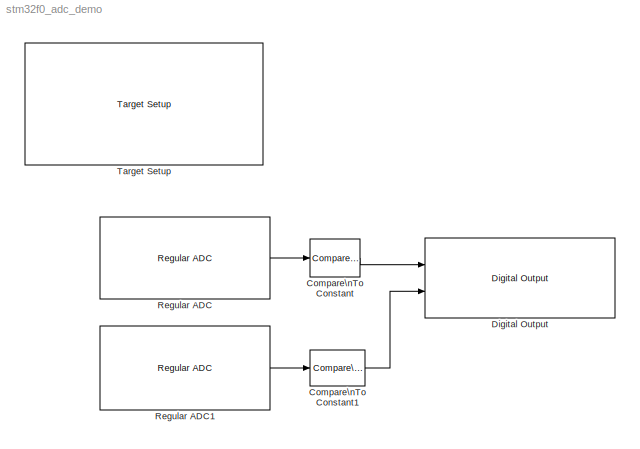
MODEL stm32f0_adc_demo
KIND model
CONFIG PreLoadFcn = waijung.modelPreload; % Required for working with Waijung Blockset. Do not remove.
BLOCK [Reference] Compare\nTo Constant  REF=simulink/Logic and Bit\nOperations/Compare\nTo Constant
  FunctionWithSeparateData = off
  LogicOutDataTypeMode = uint8
  Ports = [1, 1]
  RTWMemSecDataConstants = Inherit from model
  RTWMemSecDataInternal = Inherit from model
  RTWMemSecDataParameters = Inherit from model
  RTWMemSecFuncExecute = Inherit from model
  RTWMemSecFuncInitTerm = Inherit from model
  ShowPortLabels = FromPortIcon
  SourceBlock = simulink/Logic and Bit\nOperations/Compare\nTo Constant
  SourceType = Compare To Constant
  SystemSampleTime = -1
  ZeroCross = off
  const = 2048
  relop = >=
BLOCK [Reference] Compare\nTo Constant1  REF=simulink/Logic and Bit\nOperations/Compare\nTo Constant
  FunctionWithSeparateData = off
  LogicOutDataTypeMode = uint8
  Ports = [1, 1]
  RTWMemSecDataConstants = Inherit from model
  RTWMemSecDataInternal = Inherit from model
  RTWMemSecDataParameters = Inherit from model
  RTWMemSecFuncExecute = Inherit from model
  RTWMemSecFuncInitTerm = Inherit from model
  ShowPortLabels = FromPortIcon
  SourceBlock = simulink/Logic and Bit\nOperations/Compare\nTo Constant
  SourceType = Compare To Constant
  SystemSampleTime = -1
  ZeroCross = off
  const = 2048
  relop = >=
BLOCK [Reference] Digital Output  REF=stm32f0_io_lib/Digital Output
  Ports = [2]
  SourceBlock = stm32f0_io_lib/Digital Output
  SourceType = stm32f0_digital_output
  bitbandingstr = \n#define DigitalOutput_B12 Peripheral_BB(GPIOB->ODR, 12)  /* Output pin */\n#define DigitalOutput_B13 Peripheral_BB(GPIOB->ODR, 13)  /* Output pin */
  blockid = DigitalOutput
  cinputportlabel = In1, In2
  coutputportlabel = 0
  enablecustomportlabel = off
  pinstr = GPIO_Pin_12 | GPIO_Pin_13
  port = B
  porttype = Push Pull
  porttypestr = PP
  sampletime = -1
  sampletimestr = 0.1
  speed = 2
  use_bitband = off
  use_pin0 = off
  use_pin1 = off
  use_pin10 = off
  use_pin11 = off
  use_pin12 = on
  use_pin13 = on
  use_pin14 = off
  use_pin15 = off
  use_pin2 = off
  use_pin3 = off
  use_pin4 = off
  use_pin5 = off
  use_pin6 = off
  use_pin7 = off
  use_pin8 = off
  use_pin9 = off
  usedpinarray = [0  0  0  0  0  0  0  0  0  0  0  0  1  1  0  0]
BLOCK [Reference] Regular ADC  REF=stm32f0_adc_lib/Regular ADC
  Ports = [0, 1]
  SourceBlock = stm32f0_adc_lib/Regular ADC
  SourceType = stm32f0_adc
  adc_ch0 = off
  adc_ch1 = off
  adc_ch10 = off
  adc_ch11 = off
  adc_ch12 = off
  adc_ch13 = off
  adc_ch14 = off
  adc_ch15 = off
  adc_ch16 = off
  adc_ch17 = off
  adc_ch18 = off
  adc_ch2 = off
  adc_ch3 = off
  adc_ch4 = off
  adc_ch5 = off
  adc_ch6 = on
  adc_ch7 = off
  adc_ch8 = off
  adc_ch9 = off
  blockid = RegularADC
  compat = 0
  conf = adc
  coutputportlabel = voltage,current
  enablecustomportlabel = off
  inputportlabel = {}
  inputporttype = []
  inputportwidth = []
  module = 1
  optionstring = [\"1\",\"ADC_SampleTime_239_5Cycles\",\"dummy\",\"dummy\",\"dummy\",\"0\",\"A\",\"0\",\"0\",\"A\",\"1\",\"0\",\"A\",\"2\",\"0\",\"A\",\"3\",\"0\",\"A\",\"4\",\"0\",\"A\",\"5\",\"1\",\"A\",\"6\",\"0\",\"A\",\"7\",\"0\",\"B\",\"0\",\"0\",\"B\",\"1\",\"0\",\"C\",\"0\",\"0\",\"C\",\"1\",\"0\",\"C\",\"2\",\"0\",\"C\",\"3\",\"0\",\"C\",\"4\",\"0\",\"C\",\"5\",\"0\",\"A\",\"0\",\"0\",\"A\",\"0\",\"0\",\"...<+65ch>
  outputdatatype = Uint16
  outputportlabel = {'ADC_IN6'}
  outputporttype = [5]
  outputportwidth = []
  portpinstr = 0
  sampletime = inf
  samplingtime = 239.5 Cycles
BLOCK [Reference] Regular ADC1  REF=stm32f0_adc_lib/Regular ADC
  Ports = [0, 1]
  SourceBlock = stm32f0_adc_lib/Regular ADC
  SourceType = stm32f0_adc
  adc_ch0 = off
  adc_ch1 = off
  adc_ch10 = off
  adc_ch11 = off
  adc_ch12 = off
  adc_ch13 = off
  adc_ch14 = off
  adc_ch15 = off
  adc_ch16 = off
  adc_ch17 = off
  adc_ch18 = off
  adc_ch2 = off
  adc_ch3 = off
  adc_ch4 = off
  adc_ch5 = off
  adc_ch6 = off
  adc_ch7 = on
  adc_ch8 = off
  adc_ch9 = off
  blockid = RegularADC1
  compat = 0
  conf = adc
  coutputportlabel = voltage,current
  enablecustomportlabel = off
  inputportlabel = {}
  inputporttype = []
  inputportwidth = []
  module = 1
  optionstring = [\"1\",\"ADC_SampleTime_55_5Cycles\",\"dummy\",\"dummy\",\"dummy\",\"0\",\"A\",\"0\",\"0\",\"A\",\"1\",\"0\",\"A\",\"2\",\"0\",\"A\",\"3\",\"0\",\"A\",\"4\",\"0\",\"A\",\"5\",\"0\",\"A\",\"6\",\"1\",\"A\",\"7\",\"0\",\"B\",\"0\",\"0\",\"B\",\"1\",\"0\",\"C\",\"0\",\"0\",\"C\",\"1\",\"0\",\"C\",\"2\",\"0\",\"C\",\"3\",\"0\",\"C\",\"4\",\"0\",\"C\",\"5\",\"0\",\"A\",\"0\",\"0\",\"A\",\"0\",\"0\",\"A...<+64ch>
  outputdatatype = Uint16
  outputportlabel = {'ADC_IN7'}
  outputporttype = [5]
  outputportwidth = []
  portpinstr = 0
  sampletime = inf
  samplingtime = 55.5 Cycles
BLOCK [Reference] Target Setup  REF=stm32f0_device_config_lib/Target Setup
  Ports = []
  Priority = 100
  SourceBlock = stm32f0_device_config_lib/Target Setup
  SourceType = stm32f0_target_setup
  assemblercontrolstr = $(patsubst %, -I%, .) -mcpu=cortex-m0 -mtune=cortex-m0 -mthumb -Wall -O3 -Wa,-amhls=$(<:.s=.lst) -D__STACK_SIZE=$(STACK_SIZE) -D__HEAP_SIZE=$(HEAP_SIZE)
  blockid = TargetSetup
  clockconfig = FiO MOTE-ST Default (HSEOSC-8MHz/HCLK-48MHz)
  compiler = GNU ARM
  compilercontrolstr = $(patsubst %, -I%, .) -mcpu=cortex-m0 -mthumb -mabi=aapcs -Wall -O3 -mfloat-abi=soft -ffunction-sections -fdata-sections -fno-strict-aliasing -fno-builtin --short-enums
  editctrlstr = on
  enableautocompiledownload = on
  execprofile = None
  flashlength = 128k
  flashorigin = 0x8000000
  fullchiperase = off
  hclk = 48000000
  heapsize = 0x200
  hseval = 8000000
  lastprofileruart = 3
  linkercontrolstr = -T$(LD_SCRIPT) -Wl,-Map=$(MAP),--cref,--no-warn-mismatch -mcpu=cortex-m0 -mthumb -O3 -Wl,--gc-sections --specs=nano.specs -lc -lnosys
  manualsetsampletime = off
  mcu = STM32F072CB (LQFP48)
  mcustr = STM32F072CB
  previous_compiler = GNU ARM
  profilerbaud = 500000
  profilerinitstr = 0.1,48000000,4800000,500000,0
  profilertxpin = Not used
  profileruart = 3
  programmerinterface = aMG USB Connect
  ramlength = 16k
  ramorigin = 0x20000000
  runafterdownload = on
  sampletime = 0.1
  showmemoryconfiguration = off
  stacksize = 0x200
  stdlib = STM32F072
  system_stm32f0xx_c_path = <path>
  systickreloadvalue = 4800000
  useextram = off
LINE Compare\nTo Constant1:1 -> Digital Output:2
LINE Compare\nTo Constant:1 -> Digital Output:1
LINE Regular ADC1:1 -> Compare\nTo Constant1:1
LINE Regular ADC:1 -> Compare\nTo Constant:1
note: 1 file-system path scrubbed to <path> (not preserved elsewhere — flat text is the only slx artifact)
